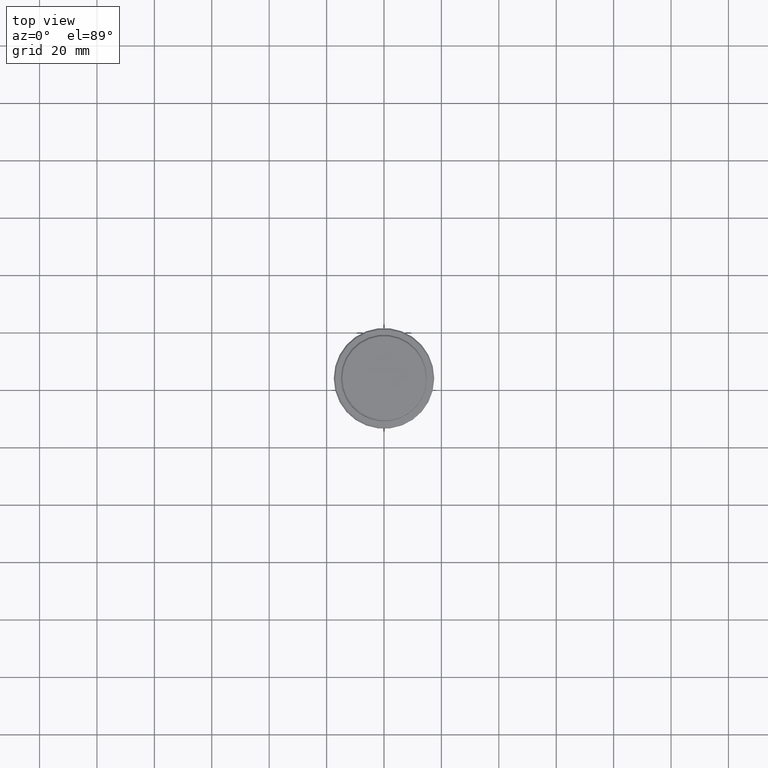
[diagram: clean part render]
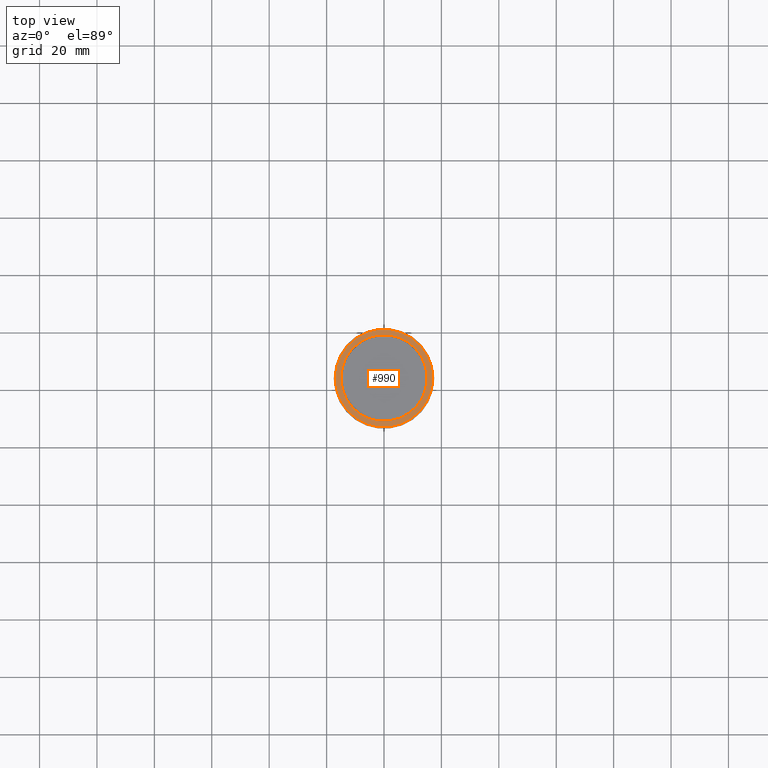
[diagram: same view with one face highlighted and labeled with its STEP entity id]
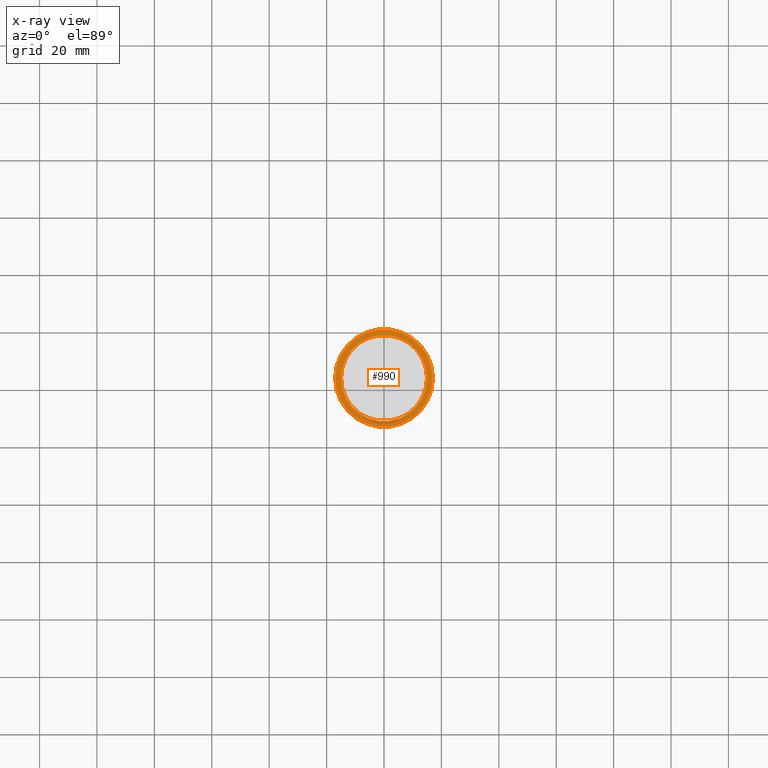
[diagram: x-ray of the same camera — body ghosted, the highlighted face saturated]
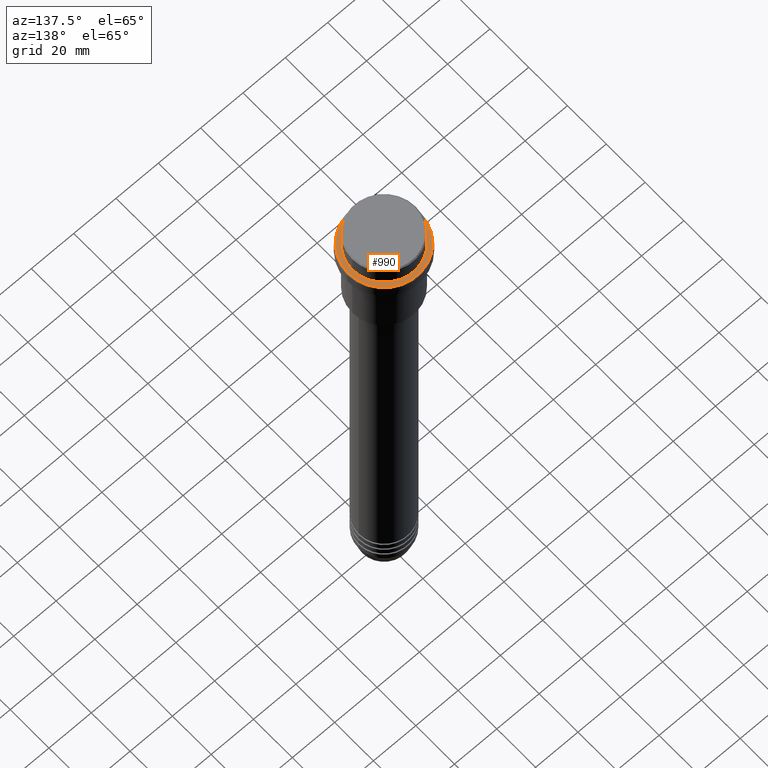
[diagram: same view with one face highlighted and labeled with its STEP entity id]
A machine part, top view. The second image highlights one B-rep face of the part: STEP entity #990.
The next image is the same camera in x-ray: the body ghosted, the highlighted face saturated — about 0% of this face is hidden behind the body in this view.
A second angle (auxiliary view) of the same face is appended — the face is thin or edge-on in the first view.
In plain terms, the highlighted planar face has unit normal (0, -0, 1).
Its self-contained STEP definition (entity closure, byte-faithful):
#16 = DIRECTION ( 'NONE',  ( -0.000000000000000000, -0.000000000000000000, 1.000000000000000000 ) ) ;
#71 = CARTESIAN_POINT ( 'NONE',  ( -14.99999999999999289, 1.836970198721028800E-15, -9.000000000000000000 ) ) ;
#102 = VERTEX_POINT ( 'NONE', #71 ) ;
#124 = PLANE ( 'NONE',  #242 ) ;
#140 = DIRECTION ( 'NONE',  ( 1.000000000000000000, 0.000000000000000000, 0.000000000000000000 ) ) ;
#142 = ORIENTED_EDGE ( 'NONE', *, *, #648, .T. ) ;
#152 = DIRECTION ( 'NONE',  ( 1.000000000000000000, 0.000000000000000000, 0.000000000000000000 ) ) ;
#242 = AXIS2_PLACEMENT_3D ( 'NONE', #1341, #474, #774 ) ;
#264 = AXIS2_PLACEMENT_3D ( 'NONE', #1167, #1401, #954 ) ;
#314 = CARTESIAN_POINT ( 'NONE',  ( 17.00000000000001421, 2.112515728529185250E-15, -9.000000000000000000 ) ) ;
#371 = CARTESIAN_POINT ( 'NONE',  ( 14.99999999999999289, 0.000000000000000000, -9.000000000000000000 ) ) ;
#468 = CIRCLE ( 'NONE', #628, 14.99999999999999289 ) ;
#474 = DIRECTION ( 'NONE',  ( 0.000000000000000000, -0.000000000000000000, 1.000000000000000000 ) ) ;
#518 = DIRECTION ( 'NONE',  ( 1.000000000000000000, 0.000000000000000000, 0.000000000000000000 ) ) ;
#543 = CARTESIAN_POINT ( 'NONE',  ( -17.00000000000001421, 0.000000000000000000, -9.000000000000000000 ) ) ;
#549 = ORIENTED_EDGE ( 'NONE', *, *, #708, .T. ) ;
#553 = EDGE_CURVE ( 'NONE', #777, #1399, #1111, .T. ) ;
#570 = EDGE_CURVE ( 'NONE', #102, #1133, #876, .T. ) ;
#581 = EDGE_LOOP ( 'NONE', ( #549, #930 ) ) ;
#628 = AXIS2_PLACEMENT_3D ( 'NONE', #920, #1278, #518 ) ;
#648 = EDGE_CURVE ( 'NONE', #1399, #777, #836, .T. ) ;
#708 = EDGE_CURVE ( 'NONE', #1133, #102, #468, .T. ) ;
#716 = DIRECTION ( 'NONE',  ( -0.000000000000000000, -0.000000000000000000, 1.000000000000000000 ) ) ;
#774 = DIRECTION ( 'NONE',  ( 1.000000000000000000, 0.000000000000000000, 0.000000000000000000 ) ) ;
#777 = VERTEX_POINT ( 'NONE', #543 ) ;
#836 = CIRCLE ( 'NONE', #996, 17.00000000000001421 ) ;
#876 = CIRCLE ( 'NONE', #264, 14.99999999999999289 ) ;
#900 = FACE_BOUND ( 'NONE', #581, .T. ) ;
#920 = CARTESIAN_POINT ( 'NONE',  ( 0.000000000000000000, 0.000000000000000000, -9.000000000000000000 ) ) ;
#930 = ORIENTED_EDGE ( 'NONE', *, *, #570, .T. ) ;
#954 = DIRECTION ( 'NONE',  ( 1.000000000000000000, 0.000000000000000000, 0.000000000000000000 ) ) ;
#990 = ADVANCED_FACE ( 'NONE', ( #1324, #900 ), #124, .T. ) ;
#996 = AXIS2_PLACEMENT_3D ( 'NONE', #1332, #16, #140 ) ;
#1111 = CIRCLE ( 'NONE', #1313, 17.00000000000001421 ) ;
#1123 = EDGE_LOOP ( 'NONE', ( #1142, #142 ) ) ;
#1133 = VERTEX_POINT ( 'NONE', #371 ) ;
#1142 = ORIENTED_EDGE ( 'NONE', *, *, #553, .T. ) ;
#1167 = CARTESIAN_POINT ( 'NONE',  ( 0.000000000000000000, 0.000000000000000000, -9.000000000000000000 ) ) ;
#1263 = CARTESIAN_POINT ( 'NONE',  ( 0.000000000000000000, 0.000000000000000000, -9.000000000000000000 ) ) ;
#1278 = DIRECTION ( 'NONE',  ( 0.000000000000000000, 0.000000000000000000, -1.000000000000000000 ) ) ;
#1313 = AXIS2_PLACEMENT_3D ( 'NONE', #1263, #716, #152 ) ;
#1324 = FACE_OUTER_BOUND ( 'NONE', #1123, .T. ) ;
#1332 = CARTESIAN_POINT ( 'NONE',  ( 0.000000000000000000, 0.000000000000000000, -9.000000000000000000 ) ) ;
#1341 = CARTESIAN_POINT ( 'NONE',  ( 0.000000000000000000, 14.49999999999999467, -9.000000000000000000 ) ) ;
#1399 = VERTEX_POINT ( 'NONE', #314 ) ;
#1401 = DIRECTION ( 'NONE',  ( 0.000000000000000000, 0.000000000000000000, -1.000000000000000000 ) ) ;